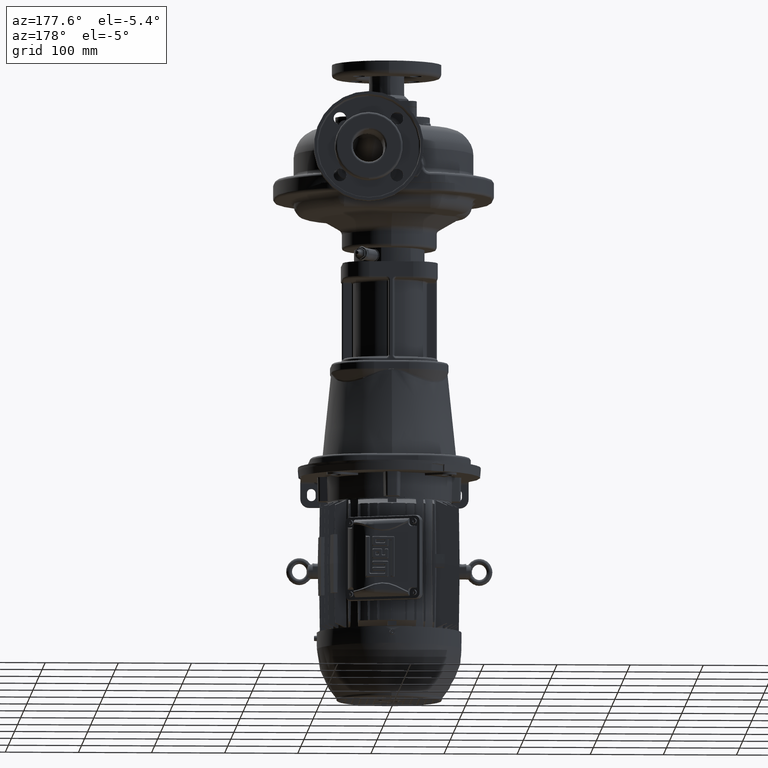
[diagram: clean part render]
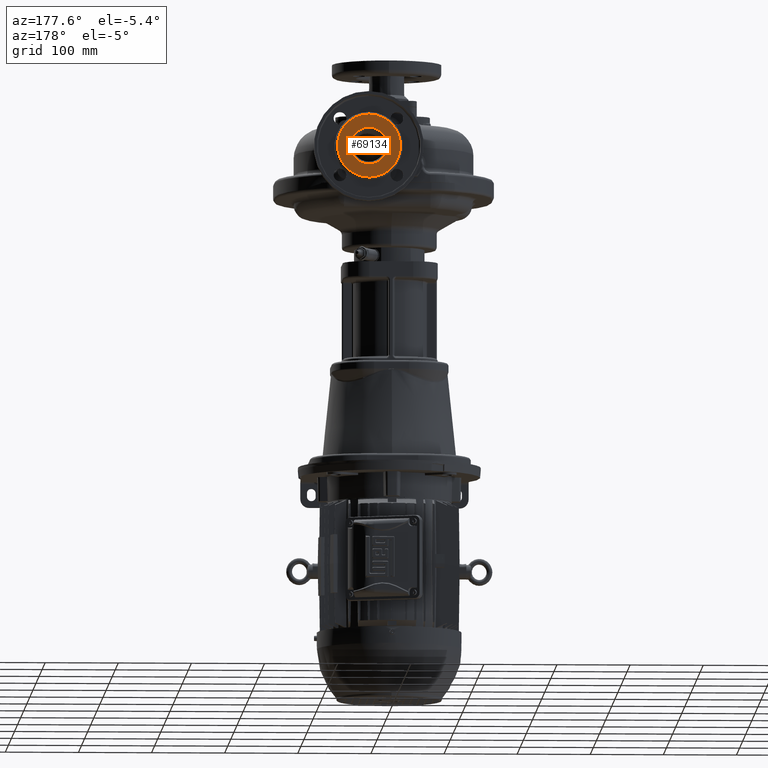
[diagram: same view with one face highlighted and labeled with its STEP entity id]
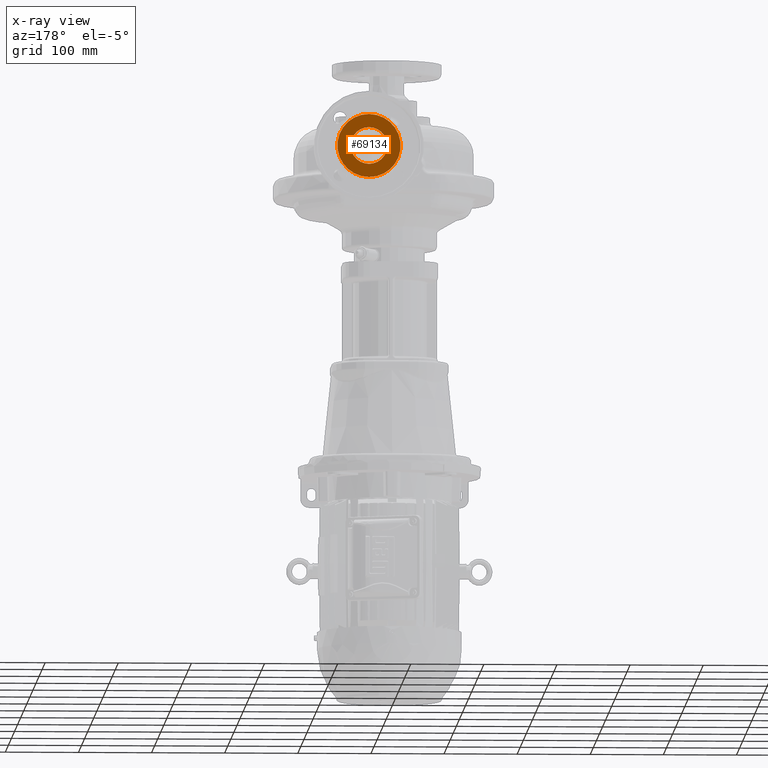
[diagram: x-ray of the same camera — body ghosted, the highlighted face saturated]
A machine part, auxiliary view. The second image highlights one B-rep face of the part: STEP entity #69134.
The next image is the same camera in x-ray: the body ghosted, the highlighted face saturated — about 0% of this face is hidden behind the body in this view.
In plain terms, the highlighted planar face has unit normal (0, 1, 0).
Its self-contained STEP definition (entity closure, byte-faithful):
#11534=CARTESIAN_POINT('',(3.8E1,2.45E2,3.9E1));
#11535=DIRECTION('',(0.E0,-1.E0,0.E0));
#11536=DIRECTION('',(0.E0,0.E0,-1.E0));
#11537=AXIS2_PLACEMENT_3D('',#11534,#11535,#11536);
#11539=CARTESIAN_POINT('',(3.8E1,2.45E2,3.9E1));
#11540=DIRECTION('',(0.E0,1.E0,0.E0));
#11541=DIRECTION('',(0.E0,0.E0,-1.E0));
#11542=AXIS2_PLACEMENT_3D('',#11539,#11540,#11541);
#11544=CARTESIAN_POINT('',(3.8E1,2.45E2,3.9E1));
#11545=DIRECTION('',(0.E0,-1.E0,0.E0));
#11546=DIRECTION('',(0.E0,0.E0,-1.E0));
#11547=AXIS2_PLACEMENT_3D('',#11544,#11545,#11546);
#11549=CARTESIAN_POINT('',(3.8E1,2.45E2,3.9E1));
#11550=DIRECTION('',(0.E0,1.E0,0.E0));
#11551=DIRECTION('',(0.E0,0.E0,-1.E0));
#11552=AXIS2_PLACEMENT_3D('',#11549,#11550,#11551);
#48739=CARTESIAN_POINT('',(3.8E1,2.45E2,1.385E1));
#48741=VERTEX_POINT('',#48739);
#48742=CARTESIAN_POINT('',(3.8E1,2.45E2,-4.25E0));
#48744=VERTEX_POINT('',#48742);
#48751=CARTESIAN_POINT('',(3.8E1,2.45E2,6.415E1));
#48753=VERTEX_POINT('',#48751);
#48754=CARTESIAN_POINT('',(3.8E1,2.45E2,8.225E1));
#48756=VERTEX_POINT('',#48754);
#69119=CARTESIAN_POINT('',(3.8E1,2.45E2,3.9E1));
#69120=DIRECTION('',(0.E0,1.E0,0.E0));
#69121=DIRECTION('',(0.E0,0.E0,1.E0));
#69122=AXIS2_PLACEMENT_3D('',#69119,#69120,#69121);
#69123=PLANE('',#69122);
#69124=ORIENTED_EDGE('',*,*,#69112,.F.);
#69125=ORIENTED_EDGE('',*,*,#69101,.T.);
#69126=EDGE_LOOP('',(#69124,#69125));
#69127=FACE_OUTER_BOUND('',#69126,.F.);
#69129=ORIENTED_EDGE('',*,*,#69128,.F.);
#69131=ORIENTED_EDGE('',*,*,#69130,.T.);
#69132=EDGE_LOOP('',(#69129,#69131));
#69133=FACE_BOUND('',#69132,.F.);
#69134=ADVANCED_FACE('',(#69127,#69133),#69123,.T.);
#11538=CIRCLE('',#11537,4.325E1);
#11543=CIRCLE('',#11542,4.325E1);
#11548=CIRCLE('',#11547,2.515E1);
#11553=CIRCLE('',#11552,2.515E1);
#69101=EDGE_CURVE('',#48744,#48756,#11538,.T.);
#69112=EDGE_CURVE('',#48744,#48756,#11543,.T.);
#69128=EDGE_CURVE('',#48741,#48753,#11548,.T.);
#69130=EDGE_CURVE('',#48741,#48753,#11553,.T.);